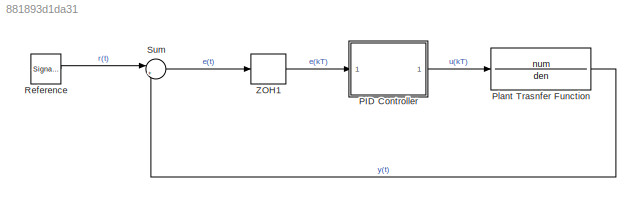
MODEL slx_881893d1da31
KIND model
CONFIG AbsTol = auto
CONFIG EnableMultiTasking = off
CONFIG FixedStep = auto
CONFIG MaxStep = auto
CONFIG MinStep = auto
CONFIG RelTol = 1e-3
CONFIG SampleTimeConstraint = Unconstrained
CONFIG SolverName = VariableStepAuto
CONFIG StartTime = 0.0
CONFIG StopTime = 10.0
BLOCK [TransferFcn]  Plant Trasnfer Function
  Denominator = den
  Numerator = num
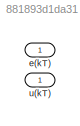
BLOCK [SubSystem] PID Controller
BLOCK [Inport] PID Controller/e(kT)
BLOCK [Outport] PID Controller/u(kT)
BLOCK [SignalGenerator] Reference
  Units = rad/sec
BLOCK [Sum] Sum
  Inputs = |+-
BLOCK [ZeroOrderHold] ZOH1
  SampleTime = -1
LINE  Plant Trasnfer Function:1 -> Sum:2
LINE PID Controller:1 ->  Plant Trasnfer Function:1
LINE Reference:1 -> Sum:1
LINE Sum:1 -> ZOH1:1
LINE ZOH1:1 -> PID Controller:1
